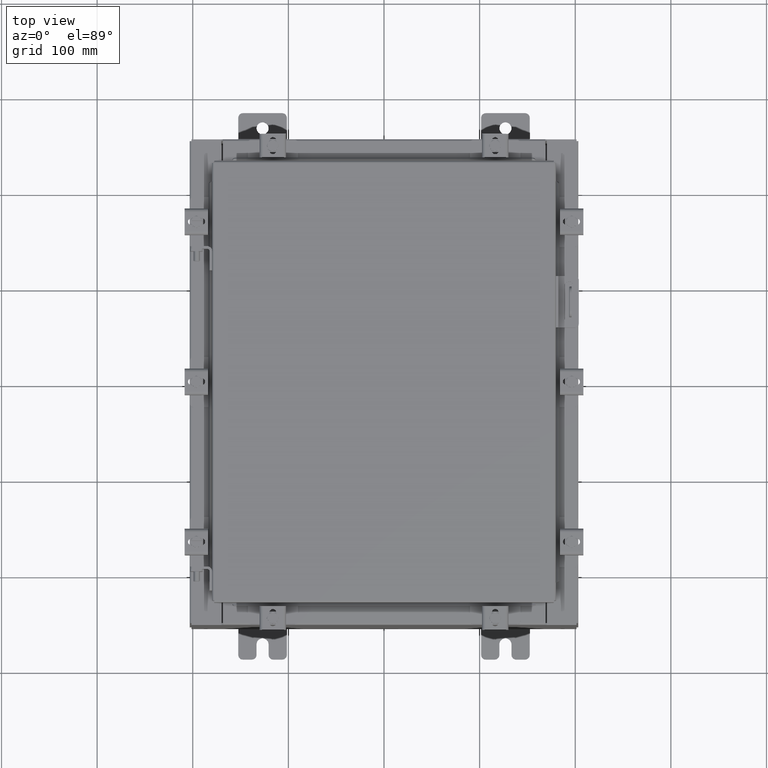
[diagram: clean part render]
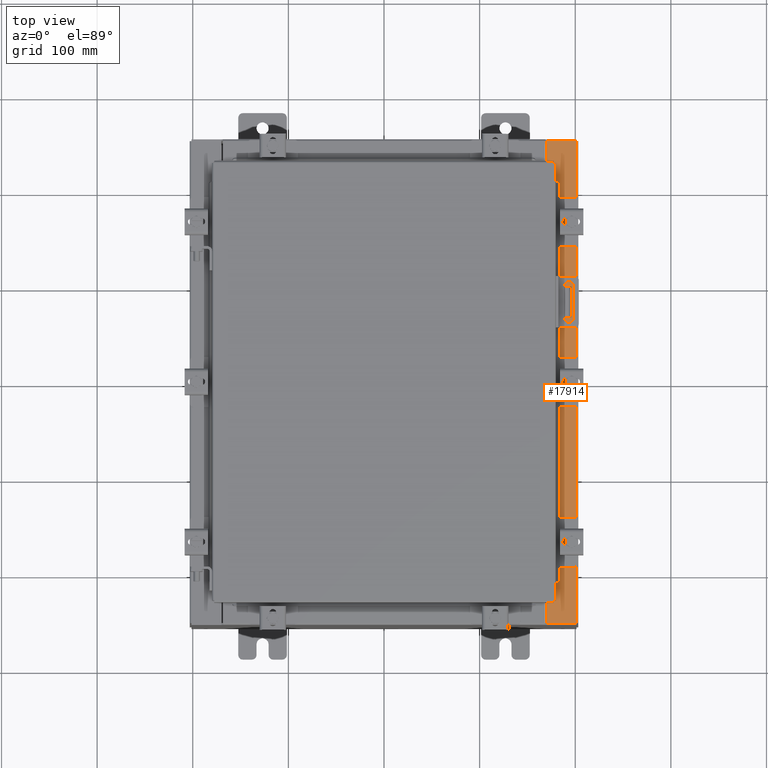
[diagram: same view with one face highlighted and labeled with its STEP entity id]
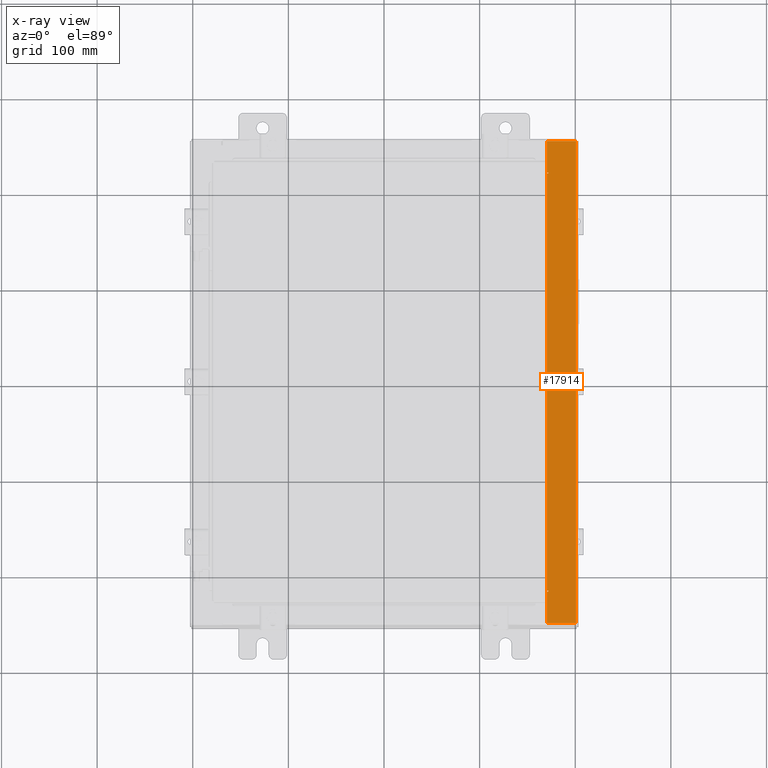
[diagram: x-ray of the same camera — body ghosted, the highlighted face saturated]
A machine part, top view. The second image highlights one B-rep face of the part: STEP entity #17914.
The next image is the same camera in x-ray: the body ghosted, the highlighted face saturated — about 0% of this face is hidden behind the body in this view.
In plain terms, the highlighted planar face has unit normal (-0, 0, -1).
Its self-contained STEP definition (entity closure, byte-faithful):
#212 = ORIENTED_EDGE ( 'NONE', *, *, #8924, .F. ) ;
#500 = DIRECTION ( 'NONE',  ( -1.000000000000000000, 0.0000000000000000000, 0.0000000000000000000 ) ) ;
#623 = CARTESIAN_POINT ( 'NONE',  ( 6.699700000000038200, -3.551267523747818500E-016, 9.925300000000007100 ) ) ;
#681 = CIRCLE ( 'NONE', #18016, 0.01867499999999949400 ) ;
#866 = CARTESIAN_POINT ( 'NONE',  ( 6.699700000000039100, -9.925300000000001800, 9.925300000000007100 ) ) ;
#890 = LINE ( 'NONE', #10928, #9588 ) ;
#945 = CARTESIAN_POINT ( 'NONE',  ( 6.699700000000038200, -3.551267523747818500E-016, 9.925300000000007100 ) ) ;
#1078 = EDGE_CURVE ( 'NONE', #5369, #7783, #681, .T. ) ;
#1208 = EDGE_CURVE ( 'NONE', #7599, #21805, #11850, .T. ) ;
#1262 = VERTEX_POINT ( 'NONE', #17736 ) ;
#1591 = ORIENTED_EDGE ( 'NONE', *, *, #12458, .T. ) ;
#1820 = LINE ( 'NONE', #945, #11102 ) ;
#2110 = ORIENTED_EDGE ( 'NONE', *, *, #15937, .F. ) ;
#2357 = DIRECTION ( 'NONE',  ( 1.100963394019027800E-016, -1.000000000000000000, -1.100963394019035600E-016 ) ) ;
#2447 = VERTEX_POINT ( 'NONE', #14173 ) ;
#2939 = VECTOR ( 'NONE', #9784, 39.37007874015748100 ) ;
#3135 = CARTESIAN_POINT ( 'NONE',  ( 6.699700000000036400, 8.631099999999994700, 9.925300000000007100 ) ) ;
#3266 = ORIENTED_EDGE ( 'NONE', *, *, #20350, .F. ) ;
#3353 = CARTESIAN_POINT ( 'NONE',  ( 7.912300000000036500, -9.925300000000001800, 9.925299999999998200 ) ) ;
#3869 = ORIENTED_EDGE ( 'NONE', *, *, #1078, .F. ) ;
#3924 = LINE ( 'NONE', #6182, #17277 ) ;
#4217 = VERTEX_POINT ( 'NONE', #16308 ) ;
#4481 = CARTESIAN_POINT ( 'NONE',  ( 7.912300000000036500, 9.925299999999989400, 9.925299999999998200 ) ) ;
#5369 = VERTEX_POINT ( 'NONE', #14755 ) ;
#5516 = VECTOR ( 'NONE', #2357, 39.37007874015748100 ) ;
#6036 = CARTESIAN_POINT ( 'NONE',  ( 1.064530234139072600E-013, 9.925300000000019600, 9.925300000000055100 ) ) ;
#6182 = CARTESIAN_POINT ( 'NONE',  ( 6.712700000000041600, -8.593750000000005300, 9.925300000000007100 ) ) ;
#6210 = CARTESIAN_POINT ( 'NONE',  ( 6.712700000000041600, -8.593750000000005300, 9.925300000000007100 ) ) ;
#6461 = DIRECTION ( 'NONE',  ( 1.000000000000000000, 0.0000000000000000000, 0.0000000000000000000 ) ) ;
#7335 = VERTEX_POINT ( 'NONE', #3135 ) ;
#7397 = DIRECTION ( 'NONE',  ( 1.000000000000000000, 0.0000000000000000000, 0.0000000000000000000 ) ) ;
#7427 = PLANE ( 'NONE',  #13361 ) ;
#7533 = DIRECTION ( 'NONE',  ( 7.132762385546378400E-015, -1.100963394019027700E-016, 1.000000000000000000 ) ) ;
#7599 = VERTEX_POINT ( 'NONE', #17661 ) ;
#7783 = VERTEX_POINT ( 'NONE', #19872 ) ;
#7864 = CARTESIAN_POINT ( 'NONE',  ( 6.750050000000041600, -8.612425000000005300, 9.925300000000007100 ) ) ;
#7865 = DIRECTION ( 'NONE',  ( 1.000000000000000000, -1.783190596386598200E-015, -7.132762385546378400E-015 ) ) ;
#8000 = DIRECTION ( 'NONE',  ( 1.100963394019027800E-016, -1.000000000000000000, -1.100963394019035600E-016 ) ) ;
#8510 = EDGE_CURVE ( 'NONE', #17266, #4217, #16457, .T. ) ;
#8527 = AXIS2_PLACEMENT_3D ( 'NONE', #15989, #11038, #10887 ) ;
#8615 = EDGE_CURVE ( 'NONE', #1262, #12392, #10169, .T. ) ;
#8924 = EDGE_CURVE ( 'NONE', #21805, #7335, #9892, .T. ) ;
#9177 = DIRECTION ( 'NONE',  ( -1.000000000000000000, 0.0000000000000000000, 7.132762385546378400E-015 ) ) ;
#9583 = ORIENTED_EDGE ( 'NONE', *, *, #1208, .F. ) ;
#9588 = VECTOR ( 'NONE', #7397, 39.37007874015748100 ) ;
#9784 = DIRECTION ( 'NONE',  ( 1.000000000000000000, 2.170286390199908100E-014, 0.0000000000000000000 ) ) ;
#9892 = LINE ( 'NONE', #15204, #14508 ) ;
#10061 = LINE ( 'NONE', #19663, #18253 ) ;
#10169 = LINE ( 'NONE', #623, #5516 ) ;
#10887 = DIRECTION ( 'NONE',  ( 1.000000000000000000, 0.0000000000000000000, 0.0000000000000000000 ) ) ;
#10928 = CARTESIAN_POINT ( 'NONE',  ( 6.712700000000041600, 8.593749999999994700, 9.925300000000007100 ) ) ;
#11038 = DIRECTION ( 'NONE',  ( 7.132762385546378400E-015, -1.100963394019027700E-016, 1.000000000000000000 ) ) ;
#11102 = VECTOR ( 'NONE', #8000, 39.37007874015748100 ) ;
#11832 = VECTOR ( 'NONE', #20004, 39.37007874015748100 ) ;
#11836 = EDGE_CURVE ( 'NONE', #1262, #5369, #16290, .T. ) ;
#11850 = CIRCLE ( 'NONE', #8527, 0.01867499999999949400 ) ;
#12392 = VERTEX_POINT ( 'NONE', #866 ) ;
#12458 = EDGE_CURVE ( 'NONE', #4217, #7335, #1820, .T. ) ;
#12511 = VECTOR ( 'NONE', #13784, 39.37007874015748100 ) ;
#13361 = AXIS2_PLACEMENT_3D ( 'NONE', #14374, #19618, #9177 ) ;
#13474 = DIRECTION ( 'NONE',  ( -1.000000000000000000, 2.170286390199814100E-014, 0.0000000000000000000 ) ) ;
#13515 = DIRECTION ( 'NONE',  ( -0.0000000000000000000, 1.000000000000000000, -0.0000000000000000000 ) ) ;
#13784 = DIRECTION ( 'NONE',  ( -0.0000000000000000000, -1.000000000000000000, -1.100963394019027800E-016 ) ) ;
#14173 = CARTESIAN_POINT ( 'NONE',  ( 7.912300000000036500, -9.925300000000005300, 9.925299999999998200 ) ) ;
#14374 = CARTESIAN_POINT ( 'NONE',  ( 7.105562016127543800E-014, -1.092739197465711600E-015, 9.925300000000055100 ) ) ;
#14508 = VECTOR ( 'NONE', #13474, 39.37007874015748100 ) ;
#14755 = CARTESIAN_POINT ( 'NONE',  ( 6.750050000000041600, -8.631100000000005300, 9.925300000000007100 ) ) ;
#15173 = CARTESIAN_POINT ( 'NONE',  ( 6.712700000000041600, 8.593749999999994700, 9.925300000000007100 ) ) ;
#15183 = ORIENTED_EDGE ( 'NONE', *, *, #8510, .T. ) ;
#15204 = CARTESIAN_POINT ( 'NONE',  ( 6.750050000000041600, 8.631099999999994700, 9.925300000000007100 ) ) ;
#15934 = ORIENTED_EDGE ( 'NONE', *, *, #16847, .F. ) ;
#15937 = EDGE_CURVE ( 'NONE', #7783, #19958, #10061, .T. ) ;
#15967 = ORIENTED_EDGE ( 'NONE', *, *, #18740, .F. ) ;
#15989 = CARTESIAN_POINT ( 'NONE',  ( 6.750050000000041600, 8.612424999999992900, 9.925300000000007100 ) ) ;
#16290 = LINE ( 'NONE', #20228, #2939 ) ;
#16308 = CARTESIAN_POINT ( 'NONE',  ( 6.699700000000036400, 9.925299999999992900, 9.925300000000007100 ) ) ;
#16457 = LINE ( 'NONE', #6036, #11832 ) ;
#16847 = EDGE_CURVE ( 'NONE', #17266, #2447, #21788, .T. ) ;
#17266 = VERTEX_POINT ( 'NONE', #4481 ) ;
#17277 = VECTOR ( 'NONE', #13515, 39.37007874015748100 ) ;
#17421 = LINE ( 'NONE', #20066, #22068 ) ;
#17661 = CARTESIAN_POINT ( 'NONE',  ( 6.750050000000041600, 8.593749999999992900, 9.925300000000007100 ) ) ;
#17736 = CARTESIAN_POINT ( 'NONE',  ( 6.699700000000039100, -8.631100000000005300, 9.925300000000007100 ) ) ;
#17914 = ADVANCED_FACE ( 'NONE', ( #22263 ), #7427, .F. ) ;
#18016 = AXIS2_PLACEMENT_3D ( 'NONE', #7864, #7533, #6461 ) ;
#18253 = VECTOR ( 'NONE', #500, 39.37007874015748100 ) ;
#18336 = CARTESIAN_POINT ( 'NONE',  ( 6.750050000000041600, 8.631099999999994700, 9.925300000000007100 ) ) ;
#18416 = ORIENTED_EDGE ( 'NONE', *, *, #11836, .F. ) ;
#18444 = ORIENTED_EDGE ( 'NONE', *, *, #21811, .T. ) ;
#18625 = ORIENTED_EDGE ( 'NONE', *, *, #8615, .T. ) ;
#18740 = EDGE_CURVE ( 'NONE', #19958, #21892, #3924, .T. ) ;
#19133 = EDGE_LOOP ( 'NONE', ( #18416, #18625, #18444, #15934, #15183, #1591, #212, #9583, #3266, #15967, #2110, #3869 ) ) ;
#19618 = DIRECTION ( 'NONE',  ( -7.132762385546378400E-015, 1.100963394019027600E-016, -1.000000000000000000 ) ) ;
#19663 = CARTESIAN_POINT ( 'NONE',  ( 6.750050000000041600, -8.593750000000005300, 9.925300000000007100 ) ) ;
#19872 = CARTESIAN_POINT ( 'NONE',  ( 6.750050000000041600, -8.593750000000005300, 9.925300000000007100 ) ) ;
#19958 = VERTEX_POINT ( 'NONE', #6210 ) ;
#20004 = DIRECTION ( 'NONE',  ( -1.000000000000000000, 3.566381192773190000E-015, 7.132762385546378400E-015 ) ) ;
#20066 = CARTESIAN_POINT ( 'NONE',  ( 5.335691853495954000E-014, -9.925299999999991100, 9.925300000000055100 ) ) ;
#20228 = CARTESIAN_POINT ( 'NONE',  ( 6.699700000000039100, -8.631100000000005300, 9.925300000000007100 ) ) ;
#20350 = EDGE_CURVE ( 'NONE', #21892, #7599, #890, .T. ) ;
#21788 = LINE ( 'NONE', #3353, #12511 ) ;
#21805 = VERTEX_POINT ( 'NONE', #18336 ) ;
#21811 = EDGE_CURVE ( 'NONE', #12392, #2447, #17421, .T. ) ;
#21892 = VERTEX_POINT ( 'NONE', #15173 ) ;
#22068 = VECTOR ( 'NONE', #7865, 39.37007874015748100 ) ;
#22263 = FACE_OUTER_BOUND ( 'NONE', #19133, .T. ) ;